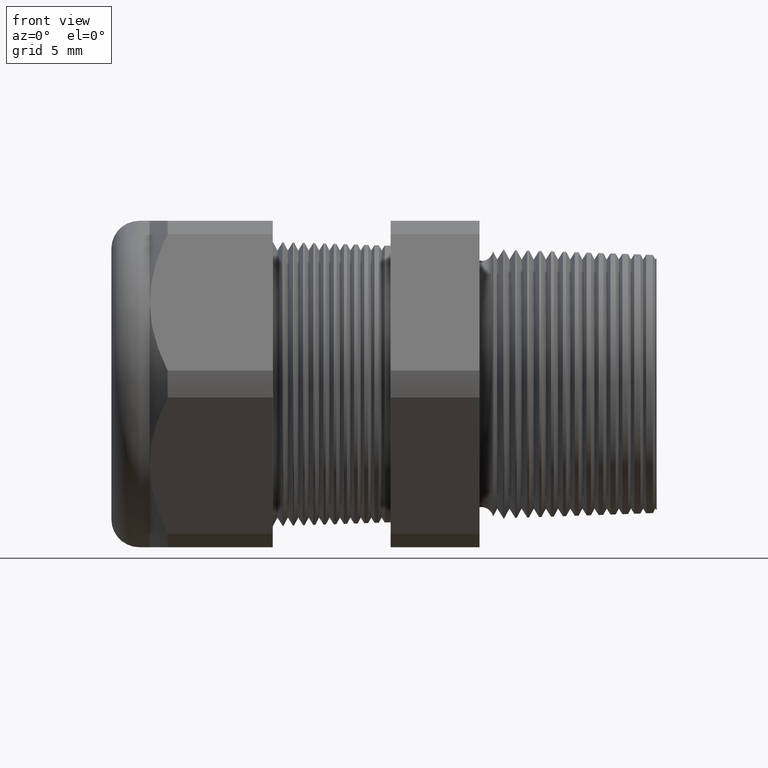
[diagram: clean part render]
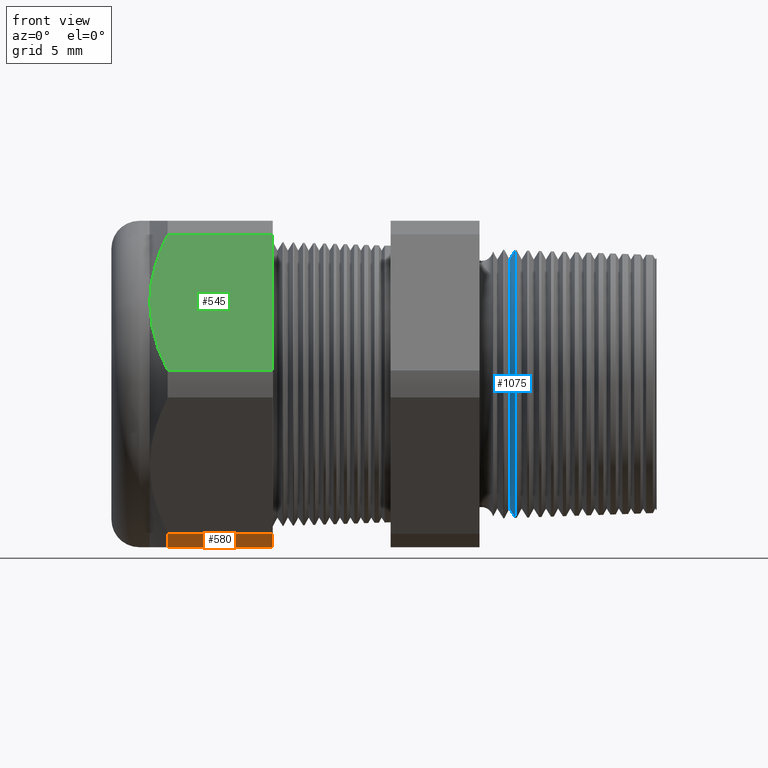
[diagram: same view with three faces highlighted in distinct colors, each labeled with its STEP entity id]
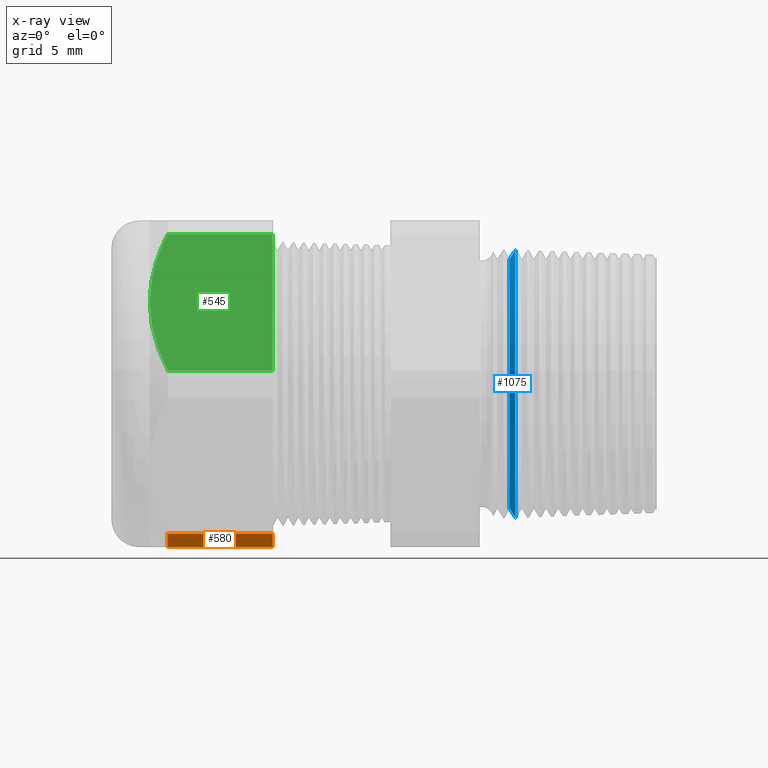
[diagram: x-ray of the same camera — body ghosted, the three highlighted faces saturated]
A machine part, front view with three faces highlighted in distinct colors.
The next image is the same camera in x-ray (body ghosted, the three faces saturated) — at least one of them is partly hidden behind the body in this view.
Their STEP definitions:

[orange] entity #580 — the highlighted cylindrical surface (partial cylindrical patch) has radius 13.2512 mm, axis along (-1, 0, 0).
#521 = VERTEX_POINT ( 'NONE', #2860 ) ;
#522 = VERTEX_POINT ( 'NONE', #2859 ) ;
#563 = ORIENTED_EDGE ( 'NONE', *, *, #564, .F. ) ;
#564 = EDGE_CURVE ( 'NONE', #522, #588, #2991, .T. ) ;
#577 = EDGE_CURVE ( 'NONE', #522, #521, #3015, .T. ) ;
#580 = ADVANCED_FACE ( 'NONE', ( #3007 ), #3005, .T. ) ;
#581 = EDGE_LOOP ( 'NONE', ( #582, #583, #586, #563 ) ) ;
#582 = ORIENTED_EDGE ( 'NONE', *, *, #577, .T. ) ;
#583 = ORIENTED_EDGE ( 'NONE', *, *, #584, .T. ) ;
#584 = EDGE_CURVE ( 'NONE', #521, #585, #3000, .T. ) ;
#585 = VERTEX_POINT ( 'NONE', #2996 ) ;
#586 = ORIENTED_EDGE ( 'NONE', *, *, #587, .F. ) ;
#587 = EDGE_CURVE ( 'NONE', #588, #585, #2995, .T. ) ;
#588 = VERTEX_POINT ( 'NONE', #3055 ) ;
#2859 = CARTESIAN_POINT ( 'NONE',  ( -0.9054330708661418900, -0.2938165587564942600, -0.4310947921287053300 ) ) ;
#2860 = CARTESIAN_POINT ( 'NONE',  ( -1.208063779527559300, -0.2938165587564942600, -0.4310947921287053300 ) ) ;
#2987 = DIRECTION ( 'NONE',  ( 0.0000000000000000000, 0.0000000000000000000, -1.000000000000000000 ) ) ;
#2988 = DIRECTION ( 'NONE',  ( 1.000000000000000000, 0.0000000000000000000, 0.0000000000000000000 ) ) ;
#2989 = CARTESIAN_POINT ( 'NONE',  ( -0.9054330708661418900, 0.0000000000000000000, 0.0000000000000000000 ) ) ;
#2990 = AXIS2_PLACEMENT_3D ( 'NONE', #2989, #2988, #2987 ) ;
#2991 = CIRCLE ( 'NONE', #2990, 0.5217000000000000500 ) ;
#2993 = VECTOR ( 'NONE', #3056, 39.37007874015748100 ) ;
#2994 = CARTESIAN_POINT ( 'NONE',  ( 0.2000000000000000400, -0.2264307620443830900, -0.4700000000000000300 ) ) ;
#2995 = LINE ( 'NONE', #2994, #2993 ) ;
#2996 = CARTESIAN_POINT ( 'NONE',  ( -1.208063779527559300, -0.2264307620443830900, -0.4700000000000000300 ) ) ;
#2997 = DIRECTION ( 'NONE',  ( 0.0000000000000000000, 0.0000000000000000000, -1.000000000000000000 ) ) ;
#2998 = DIRECTION ( 'NONE',  ( 1.000000000000000000, 0.0000000000000000000, 0.0000000000000000000 ) ) ;
#2999 = AXIS2_PLACEMENT_3D ( 'NONE', #3006, #2998, #2997 ) ;
#3000 = CIRCLE ( 'NONE', #2999, 0.5217000000000000500 ) ;
#3001 = DIRECTION ( 'NONE',  ( 0.0000000000000000000, 0.0000000000000000000, 1.000000000000000000 ) ) ;
#3002 = DIRECTION ( 'NONE',  ( -1.000000000000000000, 0.0000000000000000000, 0.0000000000000000000 ) ) ;
#3003 = CARTESIAN_POINT ( 'NONE',  ( 0.2000000000000000400, 0.0000000000000000000, 0.0000000000000000000 ) ) ;
#3004 = AXIS2_PLACEMENT_3D ( 'NONE', #3003, #3002, #3001 ) ;
#3005 = CYLINDRICAL_SURFACE ( 'NONE', #3004, 0.5217000000000000500 ) ;
#3006 = CARTESIAN_POINT ( 'NONE',  ( -1.208063779527559300, 0.0000000000000000000, 0.0000000000000000000 ) ) ;
#3007 = FACE_OUTER_BOUND ( 'NONE', #581, .T. ) ;
#3012 = DIRECTION ( 'NONE',  ( -1.000000000000000000, 0.0000000000000000000, 0.0000000000000000000 ) ) ;
#3013 = VECTOR ( 'NONE', #3012, 39.37007874015748100 ) ;
#3014 = CARTESIAN_POINT ( 'NONE',  ( 0.2000000000000000400, -0.2938165587564942600, -0.4310947921287053300 ) ) ;
#3015 = LINE ( 'NONE', #3014, #3013 ) ;
#3055 = CARTESIAN_POINT ( 'NONE',  ( -0.9054330708661418900, -0.2264307620443830900, -0.4700000000000000300 ) ) ;
#3056 = DIRECTION ( 'NONE',  ( -1.000000000000000000, 0.0000000000000000000, 0.0000000000000000000 ) ) ;

[blue] entity #1075 — the highlighted conical surface has half-angle 58 deg.
#1075 = ADVANCED_FACE ( 'NONE', ( #3778 ), #3777, .T. ) ;
#1076 = EDGE_LOOP ( 'NONE', ( #1077, #1078, #1079, #1080 ) ) ;
#1077 = ORIENTED_EDGE ( 'NONE', *, *, #1787, .F. ) ;
#1078 = ORIENTED_EDGE ( 'NONE', *, *, #1096, .T. ) ;
#1079 = ORIENTED_EDGE ( 'NONE', *, *, #1785, .T. ) ;
#1080 = ORIENTED_EDGE ( 'NONE', *, *, #1180, .T. ) ;
#1096 = EDGE_CURVE ( 'NONE', #1715, #1716, #3816, .T. ) ;
#1180 = EDGE_CURVE ( 'NONE', #1790, #1788, #3922, .T. ) ;
#1715 = VERTEX_POINT ( 'NONE', #4887 ) ;
#1716 = VERTEX_POINT ( 'NONE', #4886 ) ;
#1785 = EDGE_CURVE ( 'NONE', #1716, #1790, #5047, .T. ) ;
#1787 = EDGE_CURVE ( 'NONE', #1715, #1788, #5034, .T. ) ;
#1788 = VERTEX_POINT ( 'NONE', #5030 ) ;
#1790 = VERTEX_POINT ( 'NONE', #5029 ) ;
#3773 = DIRECTION ( 'NONE',  ( 0.0000000000000000000, 0.0000000000000000000, -1.000000000000000000 ) ) ;
#3774 = DIRECTION ( 'NONE',  ( 1.000000000000000000, 0.0000000000000000000, 0.0000000000000000000 ) ) ;
#3775 = AXIS2_PLACEMENT_3D ( 'NONE', #3782, #3774, #3773 ) ;
#3777 = CONICAL_SURFACE ( 'NONE', #3775, 0.3586208171594783600, 1.012290966156729900 ) ;
#3778 = FACE_OUTER_BOUND ( 'NONE', #1076, .T. ) ;
#3782 = CARTESIAN_POINT ( 'NONE',  ( -0.2237370280109210500, 0.0000000000000000000, 0.0000000000000000000 ) ) ;
#3808 = DIRECTION ( 'NONE',  ( 0.0000000000000000000, 0.0000000000000000000, -1.000000000000000000 ) ) ;
#3809 = DIRECTION ( 'NONE',  ( 1.000000000000000000, 0.0000000000000000000, 0.0000000000000000000 ) ) ;
#3810 = CARTESIAN_POINT ( 'NONE',  ( -0.2237370280109210500, 0.0000000000000000000, 0.0000000000000000000 ) ) ;
#3811 = AXIS2_PLACEMENT_3D ( 'NONE', #3810, #3809, #3808 ) ;
#3816 = CIRCLE ( 'NONE', #3811, 0.3586208171594783600 ) ;
#3922 = CIRCLE ( 'NONE', #3977, 0.3856058122428721600 ) ;
#3974 = DIRECTION ( 'NONE',  ( 0.0000000000000000000, 0.0000000000000000000, -1.000000000000000000 ) ) ;
#3975 = DIRECTION ( 'NONE',  ( -1.000000000000000000, 0.0000000000000000000, 0.0000000000000000000 ) ) ;
#3976 = CARTESIAN_POINT ( 'NONE',  ( -0.2068749316218845600, 0.0000000000000000000, 0.0000000000000000000 ) ) ;
#3977 = AXIS2_PLACEMENT_3D ( 'NONE', #3976, #3975, #3974 ) ;
#4886 = CARTESIAN_POINT ( 'NONE',  ( -0.2237370280109210500, 4.563873687570370700E-017, -0.3586208171594783600 ) ) ;
#4887 = CARTESIAN_POINT ( 'NONE',  ( -0.2237370280109210500, 0.0000000000000000000, 0.3586208171594783600 ) ) ;
#5029 = CARTESIAN_POINT ( 'NONE',  ( -0.2068749316218845600, 4.722309236958486600E-017, -0.3856058122428721600 ) ) ;
#5030 = CARTESIAN_POINT ( 'NONE',  ( -0.2068749316218845600, 0.0000000000000000000, 0.3856058122428721600 ) ) ;
#5031 = DIRECTION ( 'NONE',  ( 0.5299192642331890200, 1.038559386480985800E-016, 0.8480480961564357300 ) ) ;
#5032 = VECTOR ( 'NONE', #5031, 39.37007874015748900 ) ;
#5033 = CARTESIAN_POINT ( 'NONE',  ( -0.2237370280109210500, 4.391838358419634200E-017, 0.3586208171594783600 ) ) ;
#5034 = LINE ( 'NONE', #5033, #5032 ) ;
#5040 = DIRECTION ( 'NONE',  ( 0.5299192642331890200, 0.0000000000000000000, -0.8480480961564357300 ) ) ;
#5041 = VECTOR ( 'NONE', #5040, 39.37007874015748900 ) ;
#5042 = CARTESIAN_POINT ( 'NONE',  ( -0.2237370280109210500, 0.0000000000000000000, -0.3586208171594783600 ) ) ;
#5047 = LINE ( 'NONE', #5042, #5041 ) ;

[green] entity #545 — the highlighted planar face has unit normal (0, -0.866, 0.5).
#523 = ORIENTED_EDGE ( 'NONE', *, *, #524, .T. ) ;
#524 = EDGE_CURVE ( 'NONE', #550, #525, #2852, .T. ) ;
#525 = VERTEX_POINT ( 'NONE', #2851 ) ;
#526 = ORIENTED_EDGE ( 'NONE', *, *, #527, .F. ) ;
#527 = EDGE_CURVE ( 'NONE', #528, #525, #2902, .T. ) ;
#528 = VERTEX_POINT ( 'NONE', #2898 ) ;
#529 = ORIENTED_EDGE ( 'NONE', *, *, #530, .F. ) ;
#530 = EDGE_CURVE ( 'NONE', #542, #528, #2897, .T. ) ;
#539 = VERTEX_POINT ( 'NONE', #2877 ) ;
#541 = EDGE_CURVE ( 'NONE', #542, #539, #2875, .T. ) ;
#542 = VERTEX_POINT ( 'NONE', #2936 ) ;
#545 = ADVANCED_FACE ( 'NONE', ( #2930 ), #2929, .T. ) ;
#546 = EDGE_LOOP ( 'NONE', ( #547, #548, #523, #526, #529 ) ) ;
#547 = ORIENTED_EDGE ( 'NONE', *, *, #541, .T. ) ;
#548 = ORIENTED_EDGE ( 'NONE', *, *, #549, .T. ) ;
#549 = EDGE_CURVE ( 'NONE', #539, #550, #2923, .T. ) ;
#550 = VERTEX_POINT ( 'NONE', #2922 ) ;
#2849 = CARTESIAN_POINT ( 'NONE',  ( -1.259763779527559100, -0.4266212606411438600, 0.2010703009804539800 ) ) ;
#2850 = CARTESIAN_POINT ( 'NONE',  ( -1.259763779527559400, -0.4070319397786861200, 0.2349999999999998800 ) ) ;
#2851 = CARTESIAN_POINT ( 'NONE',  ( -1.208063779527559300, -0.5202473208008777700, 0.03890520787129464500 ) ) ;
#2852 = B_SPLINE_CURVE_WITH_KNOTS ( 'NONE', 3,
 ( #2850, #2849, #2906, #2905, #2904, #2903 ),
 .UNSPECIFIED., .F., .F.,
 ( 4, 2, 4 ),
 ( 0.005903107334592318600, 0.008852512982428784000, 0.01180191863026525100 ),
 .UNSPECIFIED. ) ;
#2872 = DIRECTION ( 'NONE',  ( -1.000000000000000000, 0.0000000000000000000, 0.0000000000000000000 ) ) ;
#2873 = VECTOR ( 'NONE', #2872, 39.37007874015748100 ) ;
#2874 = CARTESIAN_POINT ( 'NONE',  ( 0.2000000000000000400, -0.2938165587564945900, 0.4310947921287050500 ) ) ;
#2875 = LINE ( 'NONE', #2874, #2873 ) ;
#2877 = CARTESIAN_POINT ( 'NONE',  ( -1.208063779527559500, -0.2938165587564945900, 0.4310947921287050500 ) ) ;
#2894 = DIRECTION ( 'NONE',  ( 0.0000000000000000000, -0.4999999999999998300, -0.8660254037844388200 ) ) ;
#2895 = VECTOR ( 'NONE', #2894, 39.37007874015748100 ) ;
#2896 = CARTESIAN_POINT ( 'NONE',  ( -0.9054330708661418900, -0.3045319397786862000, 0.4125352077758097600 ) ) ;
#2897 = LINE ( 'NONE', #2896, #2895 ) ;
#2898 = CARTESIAN_POINT ( 'NONE',  ( -0.9054330708661418900, -0.5202473208008777700, 0.03890520787129464500 ) ) ;
#2899 = DIRECTION ( 'NONE',  ( -1.000000000000000000, 0.0000000000000000000, 0.0000000000000000000 ) ) ;
#2900 = VECTOR ( 'NONE', #2899, 39.37007874015748100 ) ;
#2901 = CARTESIAN_POINT ( 'NONE',  ( 0.2000000000000000400, -0.5202473208008777700, 0.03890520787129464500 ) ) ;
#2902 = LINE ( 'NONE', #2901, #2900 ) ;
#2903 = CARTESIAN_POINT ( 'NONE',  ( -1.208063779527559300, -0.5202473208008777700, 0.03890520787129464500 ) ) ;
#2904 = CARTESIAN_POINT ( 'NONE',  ( -1.223717189021967100, -0.5022144712456754200, 0.07013901950615095100 ) ) ;
#2905 = CARTESIAN_POINT ( 'NONE',  ( -1.236822062588143200, -0.4835762490957483700, 0.1024213672325803000 ) ) ;
#2906 = CARTESIAN_POINT ( 'NONE',  ( -1.254818111347315100, -0.4458197490082083700, 0.1678175437001784300 ) ) ;
#2910 = CARTESIAN_POINT ( 'NONE',  ( -1.259763779527559400, -0.4070319397786861200, 0.2349999999999998800 ) ) ;
#2911 = CARTESIAN_POINT ( 'NONE',  ( -1.259763779527559600, -0.4021312490570416200, 0.2434882453220695900 ) ) ;
#2912 = CARTESIAN_POINT ( 'NONE',  ( -1.259453644849874500, -0.3971857355050537600, 0.2520541260636331400 ) ) ;
#2913 = CARTESIAN_POINT ( 'NONE',  ( -1.258221849142435100, -0.3873598765596234500, 0.2690730129851233700 ) ) ;
#2914 = CARTESIAN_POINT ( 'NONE',  ( -1.257304216752656000, -0.3824845463488697500, 0.2775173326138240500 ) ) ;
#2915 = CARTESIAN_POINT ( 'NONE',  ( -1.253700751481475800, -0.3679645453500628400, 0.3026667120697089700 ) ) ;
#2916 = CARTESIAN_POINT ( 'NONE',  ( -1.250164085422761800, -0.3584258972266238800, 0.3191881352550267100 ) ) ;
#2917 = CARTESIAN_POINT ( 'NONE',  ( -1.236620445010038200, -0.3301755151959549500, 0.3681192322653760200 ) ) ;
#2918 = CARTESIAN_POINT ( 'NONE',  ( -1.223697825203296000, -0.3118271010418952600, 0.3998996178185234600 ) ) ;
#2919 = CARTESIAN_POINT ( 'NONE',  ( -1.208063779527559500, -0.2938165587564945900, 0.4310947921287050500 ) ) ;
#2922 = CARTESIAN_POINT ( 'NONE',  ( -1.259763779527559400, -0.4070319397786861200, 0.2349999999999998800 ) ) ;
#2923 = B_SPLINE_CURVE_WITH_KNOTS ( 'NONE', 3,
 ( #2919, #2918, #2917, #2916, #2915, #2914, #2913, #2912, #2911, #2910 ),
 .UNSPECIFIED., .F., .F.,
 ( 4, 2, 2, 2, 4 ),
 ( 2.483251536690325700E-007, 0.002951677829872997400, 0.004427392582232660100, 0.005165249958412490200, 0.005903107334592318600 ),
 .UNSPECIFIED. ) ;
#2925 = DIRECTION ( 'NONE',  ( 0.0000000000000000000, -0.4999999999999998300, -0.8660254037844388200 ) ) ;
#2926 = DIRECTION ( 'NONE',  ( 0.0000000000000000000, -0.8660254037844388200, 0.4999999999999998300 ) ) ;
#2927 = CARTESIAN_POINT ( 'NONE',  ( 0.2000000000000000400, -0.5202473208008777700, 0.03890520787129467300 ) ) ;
#2928 = AXIS2_PLACEMENT_3D ( 'NONE', #2927, #2926, #2925 ) ;
#2929 = PLANE ( 'NONE',  #2928 ) ;
#2930 = FACE_OUTER_BOUND ( 'NONE', #546, .T. ) ;
#2936 = CARTESIAN_POINT ( 'NONE',  ( -0.9054330708661418900, -0.2938165587564945900, 0.4310947921287050500 ) ) ;